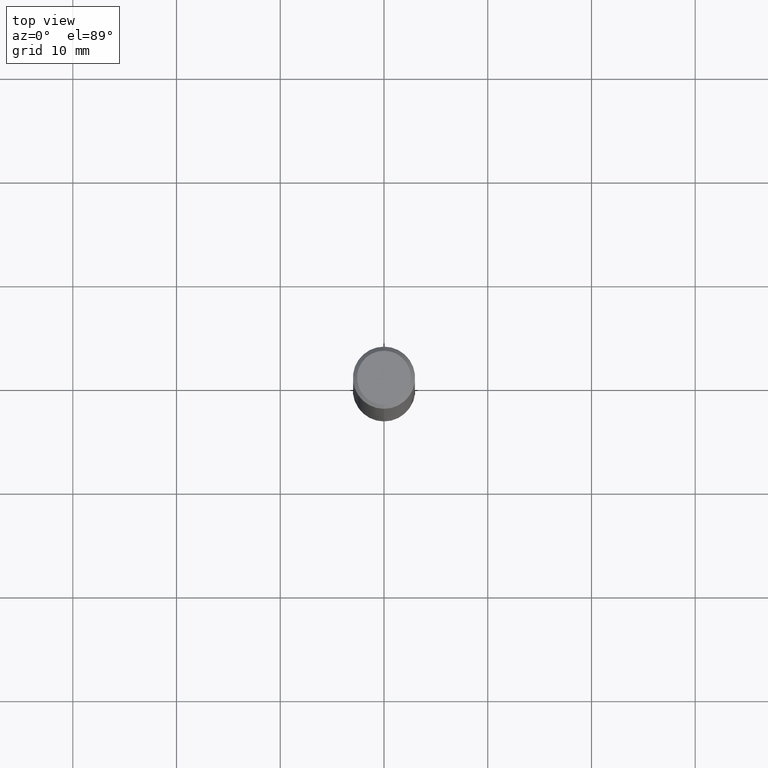
[diagram: clean part render]
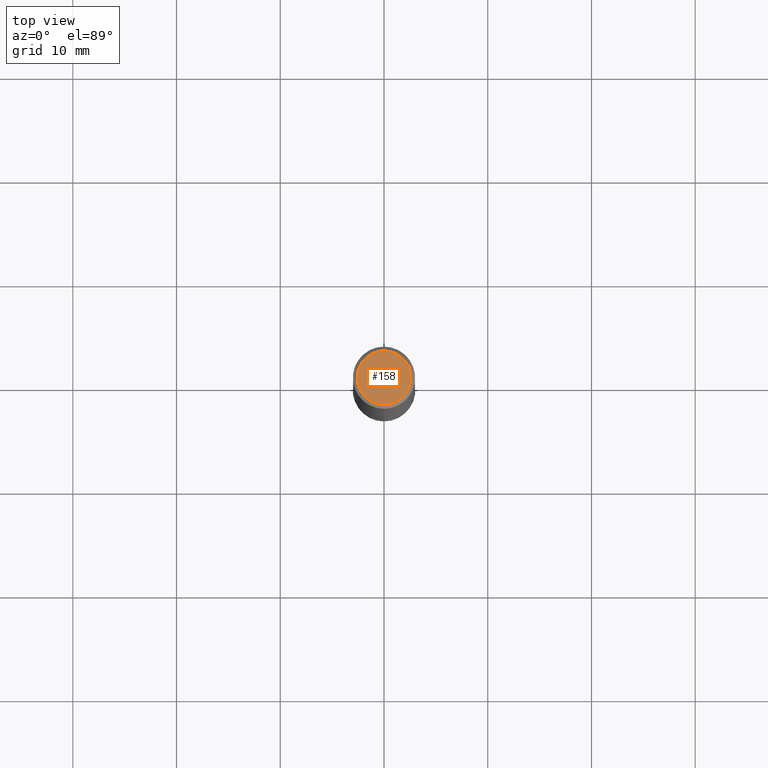
[diagram: same view with one face highlighted and labeled with its STEP entity id]
A machine part, top view. The second image highlights one B-rep face of the part: STEP entity #158.
In plain terms, the highlighted planar face has unit normal (-0, 0, 1).
Its self-contained STEP definition (entity closure, byte-faithful):
#114=VERTEX_POINT('',#263);
#158=ADVANCED_FACE('',(#313),#314,.T.);
#160=EDGE_CURVE('',#178,#114,#316,.T.);
#178=VERTEX_POINT('',#336);
#190=EDGE_CURVE('',#114,#178,#349,.T.);
#263=CARTESIAN_POINT('',(0.0,2.6,0.0));
#313=FACE_OUTER_BOUND('',#491,.T.);
#314=PLANE('',#492);
#316=CIRCLE('',#495,2.6);
#336=CARTESIAN_POINT('',(3.18397651993818E-016,-2.6,0.0));
#349=CIRCLE('',#534,2.6);
#491=EDGE_LOOP('',(#667,#668));
#492=AXIS2_PLACEMENT_3D('',#669,#670,#671);
#495=AXIS2_PLACEMENT_3D('',#672,#673,#674);
#534=AXIS2_PLACEMENT_3D('',#713,#714,#715);
#667=ORIENTED_EDGE('',*,*,#190,.F.);
#668=ORIENTED_EDGE('',*,*,#160,.F.);
#669=CARTESIAN_POINT('',(0.0,1.3,0.0));
#670=DIRECTION('',(-0.0,0.0,1.0));
#671=DIRECTION('',(0.0,-1.0,0.0));
#672=CARTESIAN_POINT('',(0.0,0.0,0.0));
#673=DIRECTION('',(0.0,0.0,-1.0));
#674=DIRECTION('',(0.0,1.0,0.0));
#713=CARTESIAN_POINT('',(0.0,0.0,0.0));
#714=DIRECTION('',(0.0,0.0,-1.0));
#715=DIRECTION('',(0.0,1.0,0.0));